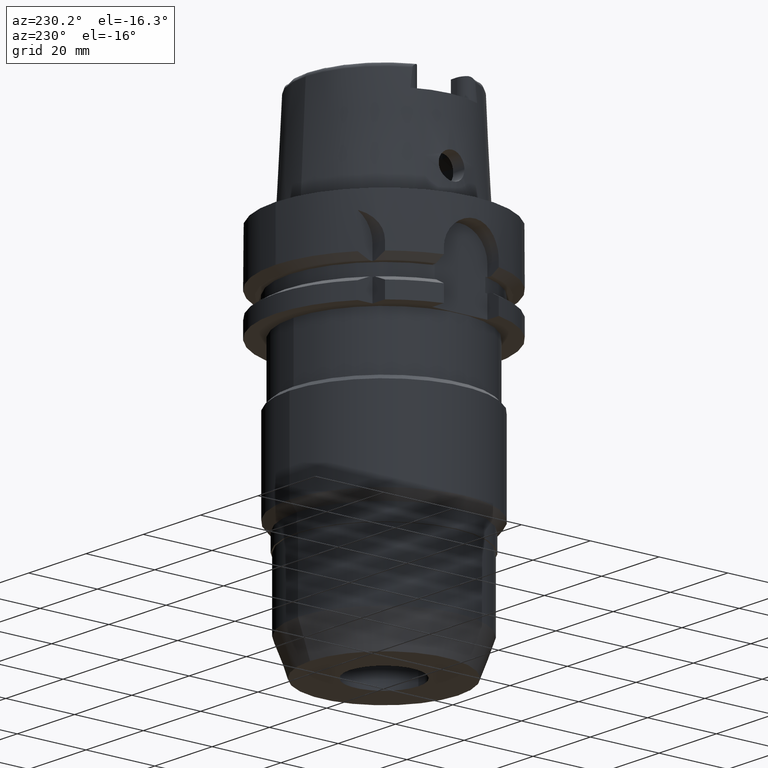
[diagram: clean part render]
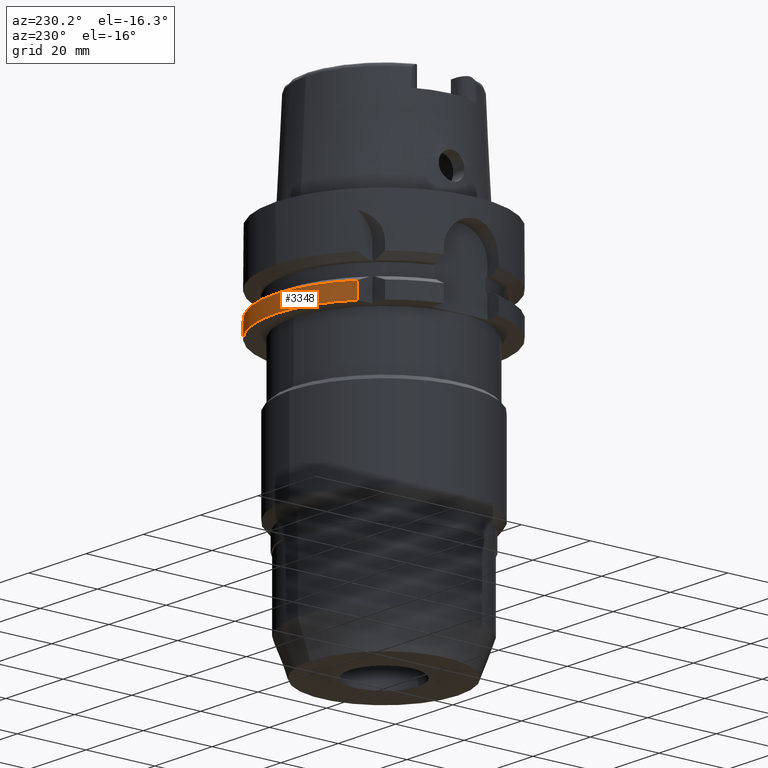
[diagram: same view with one face highlighted and labeled with its STEP entity id]
A machine part, auxiliary view. The second image highlights one B-rep face of the part: STEP entity #3348.
In plain terms, the highlighted cylindrical surface (partial cylindrical patch) has radius 31.5 mm, axis along (0, 0, 1).
Its self-contained STEP definition (entity closure, byte-faithful):
#1024=CARTESIAN_POINT('',(0.E0,0.E0,-2.6E1));
#1025=DIRECTION('',(0.E0,0.E0,1.E0));
#1026=DIRECTION('',(9.583148474999E-1,2.857142857143E-1,0.E0));
#1027=AXIS2_PLACEMENT_3D('',#1024,#1025,#1026);
#1032=CARTESIAN_POINT('',(0.E0,0.E0,-2.6E1));
#1033=DIRECTION('',(0.E0,0.E0,1.E0));
#1034=DIRECTION('',(0.E0,1.E0,0.E0));
#1035=AXIS2_PLACEMENT_3D('',#1032,#1033,#1034);
#1063=DIRECTION('',(2.980715805539E-6,2.449620258664E-6,-9.999999999926E-1));
#1064=VECTOR('',#1063,4.622451547537E0);
#1065=CARTESIAN_POINT('',(-2.000001377821E1,2.433617572403E1,
-2.137754845250E1));
#1066=LINE('',#1065,#1064);
#1070=DIRECTION('',(-4.466501118555E-8,1.498112946370E-7,1.E0));
#1071=VECTOR('',#1070,4.622495339674E0);
#1072=CARTESIAN_POINT('',(3.018691769625E1,9.E0,-2.6E1));
#1073=LINE('',#1072,#1071);
#1531=CARTESIAN_POINT('',(0.E0,0.E0,-2.137749907476E1));
#1532=DIRECTION('',(0.E0,0.E0,-1.E0));
#1533=DIRECTION('',(-6.349206349206E-1,7.725773665802E-1,0.E0));
#1534=AXIS2_PLACEMENT_3D('',#1531,#1532,#1533);
#1539=CARTESIAN_POINT('',(0.E0,0.E0,-2.137749907476E1));
#1540=DIRECTION('',(0.E0,0.E0,-1.E0));
#1541=DIRECTION('',(0.E0,1.E0,0.E0));
#1542=AXIS2_PLACEMENT_3D('',#1539,#1540,#1541);
#2527=CARTESIAN_POINT('',(-2.E1,2.433618704728E1,-2.6E1));
#2529=VERTEX_POINT('',#2527);
#2548=CARTESIAN_POINT('',(3.018691769625E1,9.E0,-2.6E1));
#2549=VERTEX_POINT('',#2548);
#2550=CARTESIAN_POINT('',(0.E0,3.15E1,-2.6E1));
#2551=VERTEX_POINT('',#2550);
#2552=CARTESIAN_POINT('',(-2.000001377821E1,2.433617572403E1,
-2.137754845250E1));
#2553=VERTEX_POINT('',#2552);
#2572=CARTESIAN_POINT('',(3.018691748978E1,9.000000692502E0,-2.137750466033E1));
#2573=VERTEX_POINT('',#2572);
#2574=CARTESIAN_POINT('',(0.E0,3.15E1,-2.137749907476E1));
#2575=VERTEX_POINT('',#2574);
#3332=CARTESIAN_POINT('',(0.E0,0.E0,-1.1185E2));
#3333=DIRECTION('',(0.E0,0.E0,1.E0));
#3334=DIRECTION('',(0.E0,1.E0,0.E0));
#3335=AXIS2_PLACEMENT_3D('',#3332,#3333,#3334);
#3336=CYLINDRICAL_SURFACE('',#3335,3.15E1);
#3337=ORIENTED_EDGE('',*,*,#3321,.T.);
#3338=ORIENTED_EDGE('',*,*,#3304,.F.);
#3339=ORIENTED_EDGE('',*,*,#3302,.F.);
#3341=ORIENTED_EDGE('',*,*,#3340,.T.);
#3343=ORIENTED_EDGE('',*,*,#3342,.F.);
#3345=ORIENTED_EDGE('',*,*,#3344,.F.);
#3346=EDGE_LOOP('',(#3337,#3338,#3339,#3341,#3343,#3345));
#3347=FACE_OUTER_BOUND('',#3346,.F.);
#1028=CIRCLE('',#1027,3.15E1);
#1036=CIRCLE('',#1035,3.15E1);
#1535=CIRCLE('',#1534,3.15E1);
#1543=CIRCLE('',#1542,3.15E1);
#3302=EDGE_CURVE('',#2549,#2551,#1028,.T.);
#3304=EDGE_CURVE('',#2551,#2529,#1036,.T.);
#3321=EDGE_CURVE('',#2553,#2529,#1066,.T.);
#3340=EDGE_CURVE('',#2549,#2573,#1073,.T.);
#3342=EDGE_CURVE('',#2575,#2573,#1543,.T.);
#3344=EDGE_CURVE('',#2553,#2575,#1535,.T.);
#3348=ADVANCED_FACE('',(#3347),#3336,.T.);